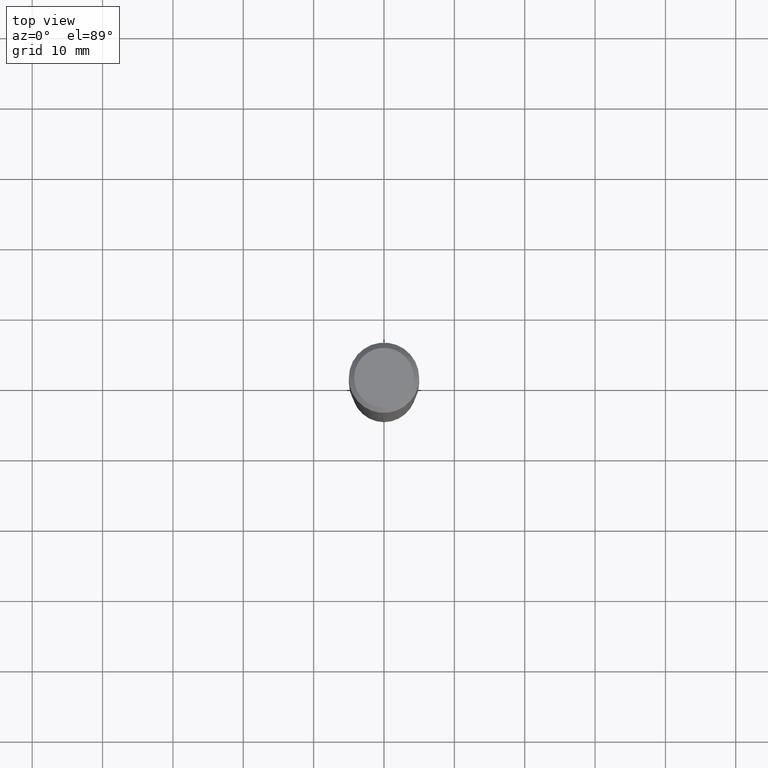
[diagram: clean part render]
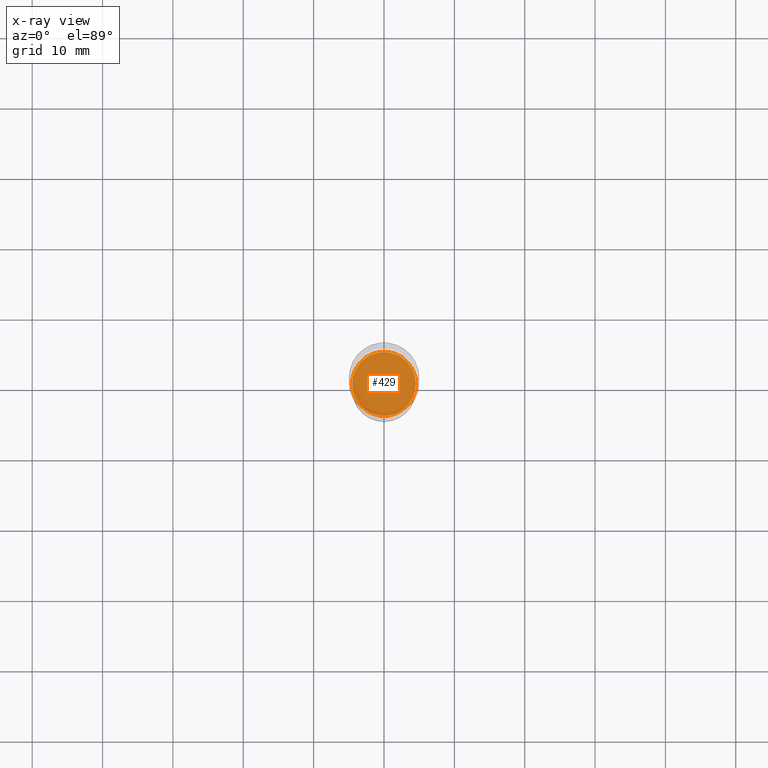
[diagram: x-ray — body ghosted, one internal face saturated and labeled with its STEP entity id]
A machine part, top view, then the same camera in x-ray: the body is ghosted and one INTERNAL B-rep face — a face not visible from any outside direction — is saturated and labeled: STEP entity #429.
In plain terms, the highlighted planar face has unit normal (-0, 0, 1).
Its self-contained STEP definition (entity closure, byte-faithful):
#19 = CARTESIAN_POINT ( 'NONE',  ( 4.919794144283257255E-29, -7.024162157484639438E-15, -2.011800000000000033 ) ) ;
#26 = CARTESIAN_POINT ( 'NONE',  ( 0.1786500000000000310, -8.271668439853292431E-15, -2.011800000000000033 ) ) ;
#33 = DIRECTION ( 'NONE',  ( -2.445468806185136597E-29, 3.491481338843145583E-15, 1.000000000000000000 ) ) ;
#34 = AXIS2_PLACEMENT_3D ( 'NONE', #111, #346, #386 ) ;
#35 = EDGE_LOOP ( 'NONE', ( #109, #310 ) ) ;
#38 = FACE_OUTER_BOUND ( 'NONE', #35, .T. ) ;
#41 = AXIS2_PLACEMENT_3D ( 'NONE', #19, #440, #391 ) ;
#109 = ORIENTED_EDGE ( 'NONE', *, *, #244, .F. ) ;
#111 = CARTESIAN_POINT ( 'NONE',  ( 4.919794144283257255E-29, -7.024162157484639438E-15, -2.011800000000000033 ) ) ;
#142 = AXIS2_PLACEMENT_3D ( 'NONE', #178, #33, #185 ) ;
#156 = CIRCLE ( 'NONE', #142, 0.1786500000000000310 ) ;
#161 = CARTESIAN_POINT ( 'NONE',  ( -0.1786500000000000310, -5.752128332875109429E-15, -2.011800000000000033 ) ) ;
#174 = EDGE_CURVE ( 'NONE', #241, #199, #156, .T. ) ;
#178 = CARTESIAN_POINT ( 'NONE',  ( 4.919794144283257255E-29, -7.024162157484639438E-15, -2.011800000000000033 ) ) ;
#185 = DIRECTION ( 'NONE',  ( 1.000000000000000000, -6.982962677686269077E-15, 0.000000000000000000 ) ) ;
#190 = PLANE ( 'NONE',  #34 ) ;
#199 = VERTEX_POINT ( 'NONE', #26 ) ;
#230 = CIRCLE ( 'NONE', #41, 0.1786500000000000310 ) ;
#241 = VERTEX_POINT ( 'NONE', #161 ) ;
#244 = EDGE_CURVE ( 'NONE', #199, #241, #230, .T. ) ;
#310 = ORIENTED_EDGE ( 'NONE', *, *, #174, .F. ) ;
#346 = DIRECTION ( 'NONE',  ( -2.438088387897960049E-29, 3.491481338843145188E-15, 1.000000000000000000 ) ) ;
#386 = DIRECTION ( 'NONE',  ( 1.000000000000000000, -6.982962677686265922E-15, 4.876176775795935793E-29 ) ) ;
#391 = DIRECTION ( 'NONE',  ( 1.000000000000000000, -6.982962677686269077E-15, 0.000000000000000000 ) ) ;
#429 = ADVANCED_FACE ( 'NONE', ( #38 ), #190, .F. ) ;
#440 = DIRECTION ( 'NONE',  ( -2.445468806185136597E-29, 3.491481338843145583E-15, 1.000000000000000000 ) ) ;